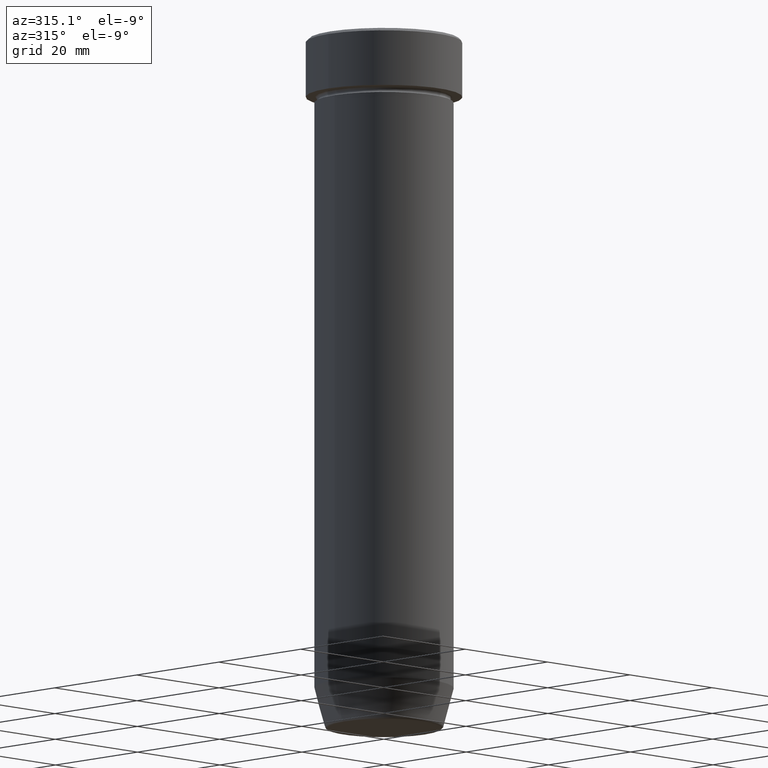
[diagram: clean part render]
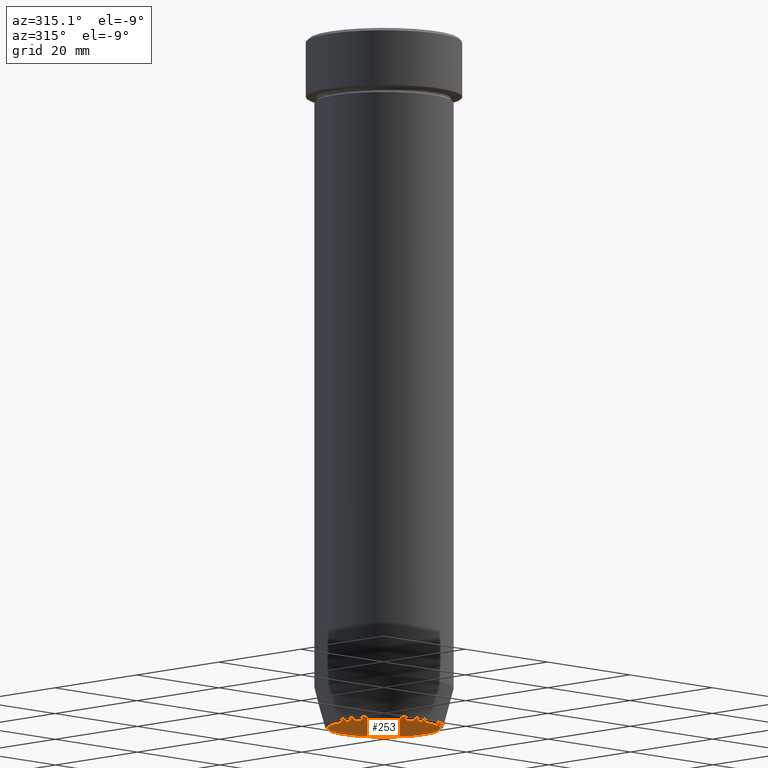
[diagram: same view with one face highlighted and labeled with its STEP entity id]
A machine part, auxiliary view. The second image highlights one B-rep face of the part: STEP entity #253.
In plain terms, the highlighted planar face has unit normal (0, -0, 1).
Its self-contained STEP definition (entity closure, byte-faithful):
#3 = CARTESIAN_POINT ( 'NONE',  ( 0.000000000000000000, 0.000000000000000000, -120.0000000000000000 ) ) ;
#100 = DIRECTION ( 'NONE',  ( 0.000000000000000000, -0.000000000000000000, 1.000000000000000000 ) ) ;
#106 = EDGE_CURVE ( 'NONE', #532, #543, #377, .T. ) ;
#108 = PLANE ( 'NONE',  #548 ) ;
#140 = CARTESIAN_POINT ( 'NONE',  ( 0.000000000000000000, 0.000000000000000000, -120.0000000000000000 ) ) ;
#144 = DIRECTION ( 'NONE',  ( 1.000000000000000000, 0.000000000000000000, 0.000000000000000000 ) ) ;
#188 = EDGE_CURVE ( 'NONE', #543, #532, #204, .T. ) ;
#189 = DIRECTION ( 'NONE',  ( 0.000000000000000000, 0.000000000000000000, -1.000000000000000000 ) ) ;
#204 = CIRCLE ( 'NONE', #557, 9.740692158992652949 ) ;
#234 = DIRECTION ( 'NONE',  ( 1.000000000000000000, 0.000000000000000000, 0.000000000000000000 ) ) ;
#253 = ADVANCED_FACE ( 'NONE', ( #434 ), #108, .F. ) ;
#308 = ORIENTED_EDGE ( 'NONE', *, *, #188, .T. ) ;
#377 = CIRCLE ( 'NONE', #534, 9.740692158992652949 ) ;
#391 = CARTESIAN_POINT ( 'NONE',  ( 0.000000000000000000, 8.572527594031472993E-15, -120.0000000000000000 ) ) ;
#397 = CARTESIAN_POINT ( 'NONE',  ( 9.740692158992652949, 0.000000000000000000, -120.0000000000000000 ) ) ;
#434 = FACE_OUTER_BOUND ( 'NONE', #500, .T. ) ;
#448 = ORIENTED_EDGE ( 'NONE', *, *, #106, .T. ) ;
#470 = DIRECTION ( 'NONE',  ( 0.000000000000000000, 0.000000000000000000, -1.000000000000000000 ) ) ;
#496 = CARTESIAN_POINT ( 'NONE',  ( -9.740692158992652949, 1.222463696683474013E-15, -120.0000000000000000 ) ) ;
#500 = EDGE_LOOP ( 'NONE', ( #308, #448 ) ) ;
#532 = VERTEX_POINT ( 'NONE', #496 ) ;
#534 = AXIS2_PLACEMENT_3D ( 'NONE', #3, #470, #234 ) ;
#543 = VERTEX_POINT ( 'NONE', #397 ) ;
#548 = AXIS2_PLACEMENT_3D ( 'NONE', #391, #100, #577 ) ;
#557 = AXIS2_PLACEMENT_3D ( 'NONE', #140, #189, #144 ) ;
#577 = DIRECTION ( 'NONE',  ( 1.000000000000000000, 0.000000000000000000, 0.000000000000000000 ) ) ;